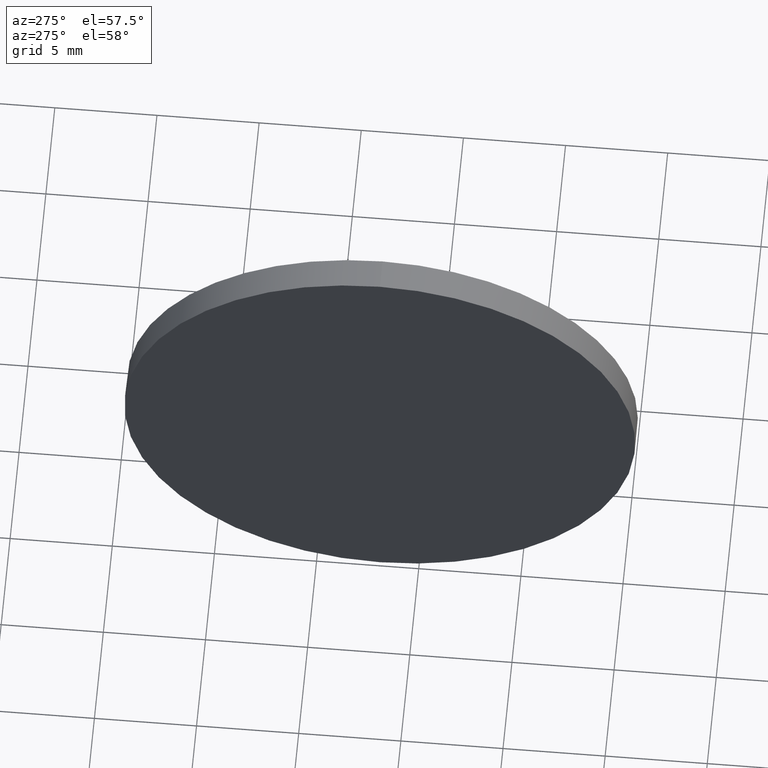
[diagram: clean part render]
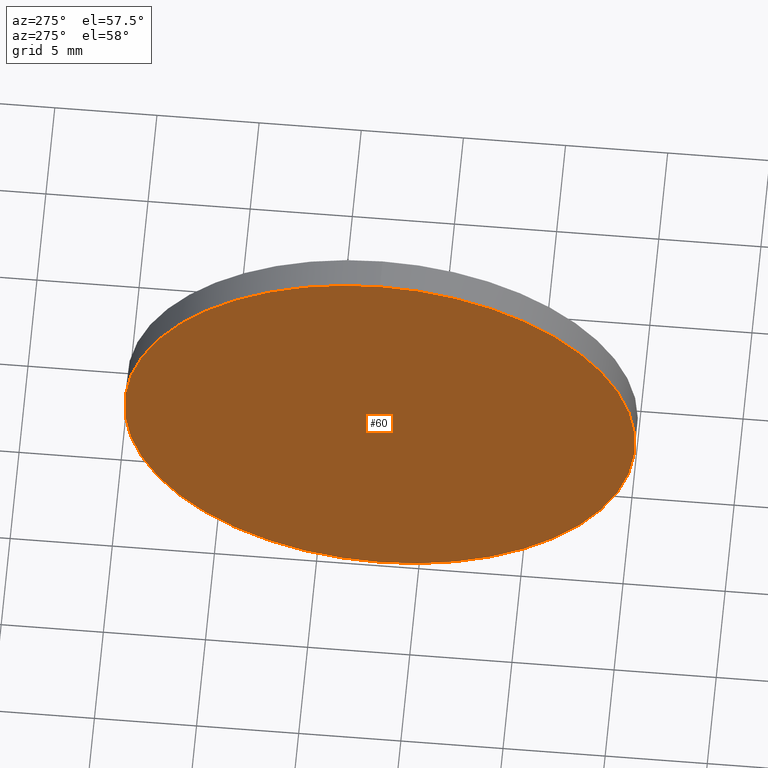
[diagram: same view with one face highlighted and labeled with its STEP entity id]
A machine part, auxiliary view. The second image highlights one B-rep face of the part: STEP entity #60.
In plain terms, the highlighted planar face has unit normal (1, 0, 0).
Its self-contained STEP definition (entity closure, byte-faithful):
#6 = ORIENTED_EDGE ( 'NONE', *, *, #64, .T. ) ;
#11 = CARTESIAN_POINT ( 'NONE',  ( 554.8657775414822000, 36.89370908063153800, 0.0000000000000000000 ) ) ;
#14 = CARTESIAN_POINT ( 'NONE',  ( 554.8657775414822000, 36.89370908063153800, 12.49999999999999600 ) ) ;
#23 = CARTESIAN_POINT ( 'NONE',  ( 554.8657775414822000, 36.89370908063153800, -12.49999999999999600 ) ) ;
#30 = CARTESIAN_POINT ( 'NONE',  ( 554.8657775414822000, 36.89370908063153800, 0.0000000000000000000 ) ) ;
#38 = AXIS2_PLACEMENT_3D ( 'NONE', #93, #168, #182 ) ;
#41 = FACE_OUTER_BOUND ( 'NONE', #140, .T. ) ;
#47 = AXIS2_PLACEMENT_3D ( 'NONE', #30, #141, #71 ) ;
#51 = AXIS2_PLACEMENT_3D ( 'NONE', #11, #80, #119 ) ;
#60 = ADVANCED_FACE ( 'NONE', ( #41 ), #183, .F. ) ;
#61 = VERTEX_POINT ( 'NONE', #14 ) ;
#64 = EDGE_CURVE ( 'NONE', #110, #61, #99, .T. ) ;
#71 = DIRECTION ( 'NONE',  ( 0.0000000000000000000, 0.0000000000000000000, 1.000000000000000000 ) ) ;
#80 = DIRECTION ( 'NONE',  ( -1.000000000000000000, -0.0000000000000000000, -0.0000000000000000000 ) ) ;
#93 = CARTESIAN_POINT ( 'NONE',  ( 554.8657775414822000, 36.89370908063153800, 0.0000000000000000000 ) ) ;
#99 = CIRCLE ( 'NONE', #51, 12.49999999999999600 ) ;
#110 = VERTEX_POINT ( 'NONE', #23 ) ;
#119 = DIRECTION ( 'NONE',  ( 0.0000000000000000000, 0.0000000000000000000, 1.000000000000000000 ) ) ;
#140 = EDGE_LOOP ( 'NONE', ( #176, #6 ) ) ;
#141 = DIRECTION ( 'NONE',  ( -1.000000000000000000, -0.0000000000000000000, -0.0000000000000000000 ) ) ;
#160 = CIRCLE ( 'NONE', #47, 12.49999999999999600 ) ;
#165 = EDGE_CURVE ( 'NONE', #61, #110, #160, .T. ) ;
#168 = DIRECTION ( 'NONE',  ( 1.000000000000000000, 0.0000000000000000000, 0.0000000000000000000 ) ) ;
#176 = ORIENTED_EDGE ( 'NONE', *, *, #165, .T. ) ;
#182 = DIRECTION ( 'NONE',  ( 0.0000000000000000000, 0.0000000000000000000, -1.000000000000000000 ) ) ;
#183 = PLANE ( 'NONE',  #38 ) ;